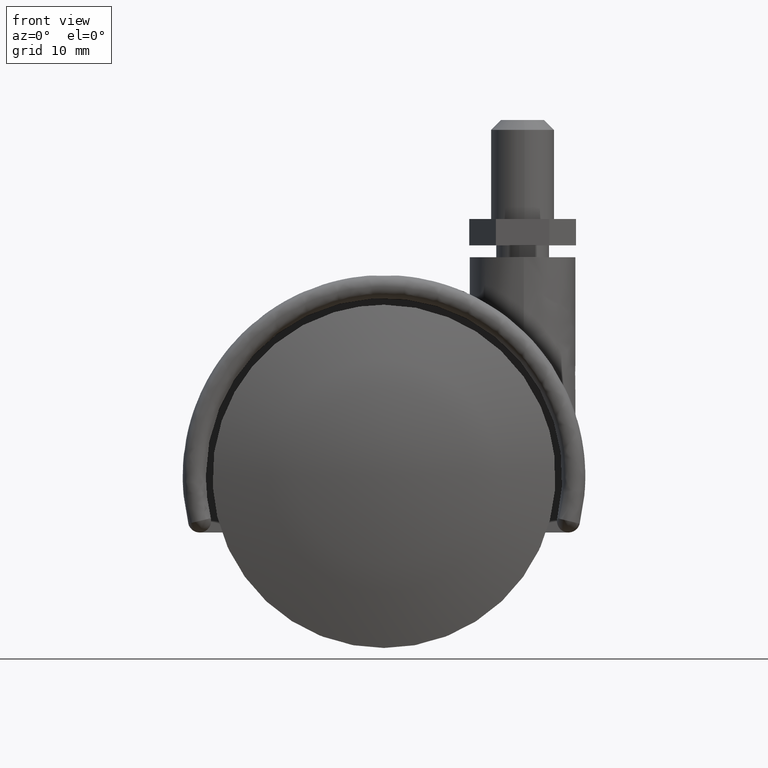
[diagram: clean part render]
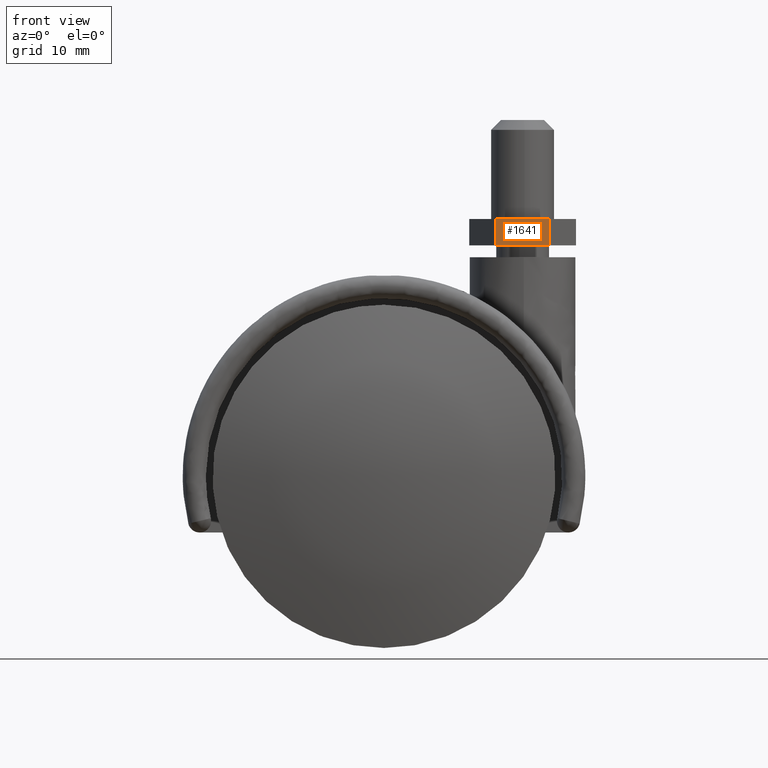
[diagram: same view with one face highlighted and labeled with its STEP entity id]
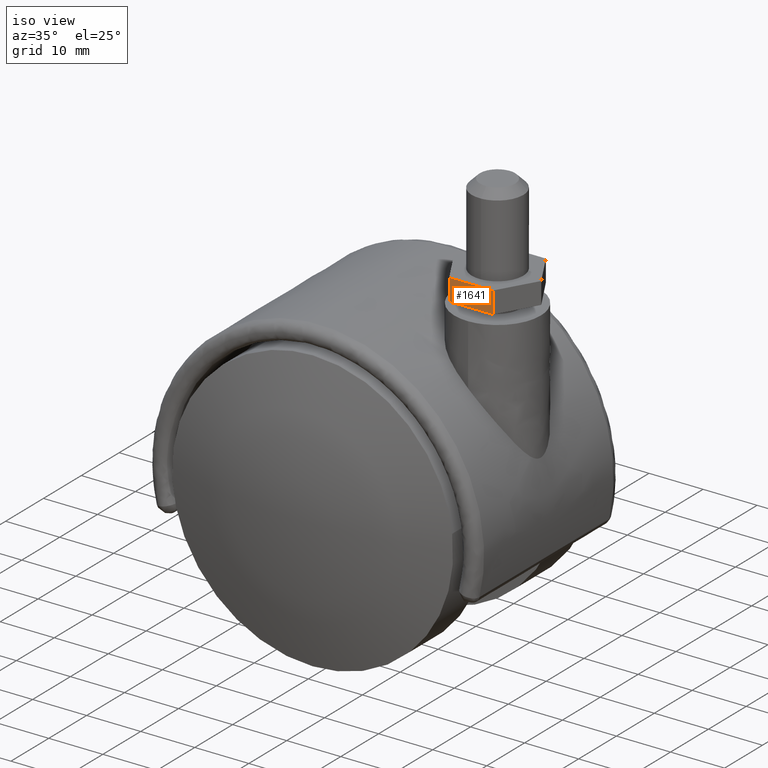
[diagram: same view with one face highlighted and labeled with its STEP entity id]
A machine part, front view. The second image highlights one B-rep face of the part: STEP entity #1641.
A second angle (iso view) of the same face is appended — the face is thin or edge-on in the first view.
In plain terms, the highlighted face is a freeform B-spline surface patch.
Its self-contained STEP definition (entity closure, byte-faithful):
#1522=CARTESIAN_POINT('',(25.042215999999900,-7.0,35.0));
#1523=VERTEX_POINT('',#1522);
#1529=CARTESIAN_POINT('',(16.959312000000001,-7.0,35.0));
#1530=VERTEX_POINT('',#1529);
#1531=CARTESIAN_POINT('',(25.042215999999900,-7.0,35.0));
#1532=CARTESIAN_POINT('',(16.959312000000001,-7.0,35.0));
#1533=QUASI_UNIFORM_CURVE('',1,(#1531,#1532),.UNSPECIFIED.,.F.,.U.);
#1534=EDGE_CURVE('',#1523,#1530,#1533,.T.);
#1564=CARTESIAN_POINT('',(16.959312000000001,-7.0,39.0));
#1565=VERTEX_POINT('',#1564);
#1571=CARTESIAN_POINT('',(25.042215999999900,-7.0,39.0));
#1572=VERTEX_POINT('',#1571);
#1573=CARTESIAN_POINT('',(25.042215999999900,-7.0,39.0));
#1574=CARTESIAN_POINT('',(16.959312000000001,-7.0,39.0));
#1575=QUASI_UNIFORM_CURVE('',1,(#1573,#1574),.UNSPECIFIED.,.F.,.U.);
#1576=EDGE_CURVE('',#1572,#1565,#1575,.T.);
#1612=CARTESIAN_POINT('',(16.959312000000001,-7.0,39.0));
#1613=CARTESIAN_POINT('',(16.959312000000001,-7.0,35.0));
#1614=QUASI_UNIFORM_CURVE('',1,(#1612,#1613),.UNSPECIFIED.,.F.,.U.);
#1615=EDGE_CURVE('',#1565,#1530,#1614,.T.);
#1626=CARTESIAN_POINT('',(16.555571445003171,-7.0,39.199799992247222));
#1627=CARTESIAN_POINT('',(16.555571445003171,-7.0,34.800199900464413));
#1628=CARTESIAN_POINT('',(25.445956627263531,-7.0,39.199799992247222));
#1629=CARTESIAN_POINT('',(25.445956627263531,-7.0,34.800199900464413));
#1630=B_SPLINE_SURFACE_WITH_KNOTS('',1,1,((#1626,#1628),(#1627,#1629)),.UNSPECIFIED.,.F.,.F.,.U.,(2,2),(2,2),(0.0,4.399600091782808),(0.0,8.890385182260360),.UNSPECIFIED.);
#1631=ORIENTED_EDGE('',*,*,#1534,.F.);
#1632=CARTESIAN_POINT('',(25.042215999999900,-7.0,39.0));
#1633=CARTESIAN_POINT('',(25.042215999999900,-7.0,35.0));
#1634=QUASI_UNIFORM_CURVE('',1,(#1632,#1633),.UNSPECIFIED.,.F.,.U.);
#1635=EDGE_CURVE('',#1572,#1523,#1634,.T.);
#1636=ORIENTED_EDGE('',*,*,#1635,.F.);
#1637=ORIENTED_EDGE('',*,*,#1576,.T.);
#1638=ORIENTED_EDGE('',*,*,#1615,.T.);
#1639=EDGE_LOOP('',(#1631,#1636,#1637,#1638));
#1640=FACE_OUTER_BOUND('',#1639,.T.);
#1641=ADVANCED_FACE('',(#1640),#1630,.T.);